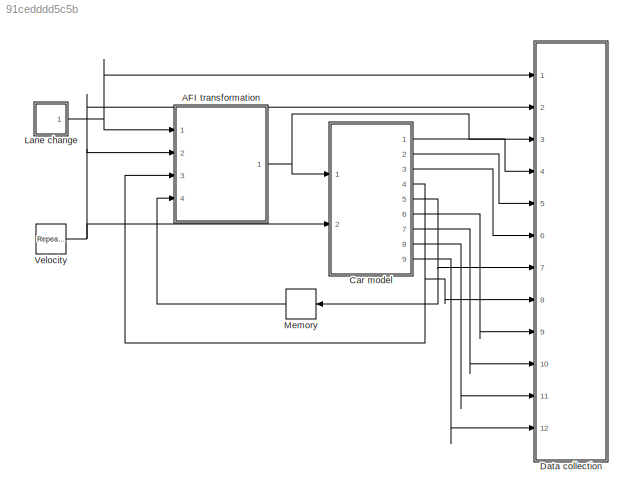
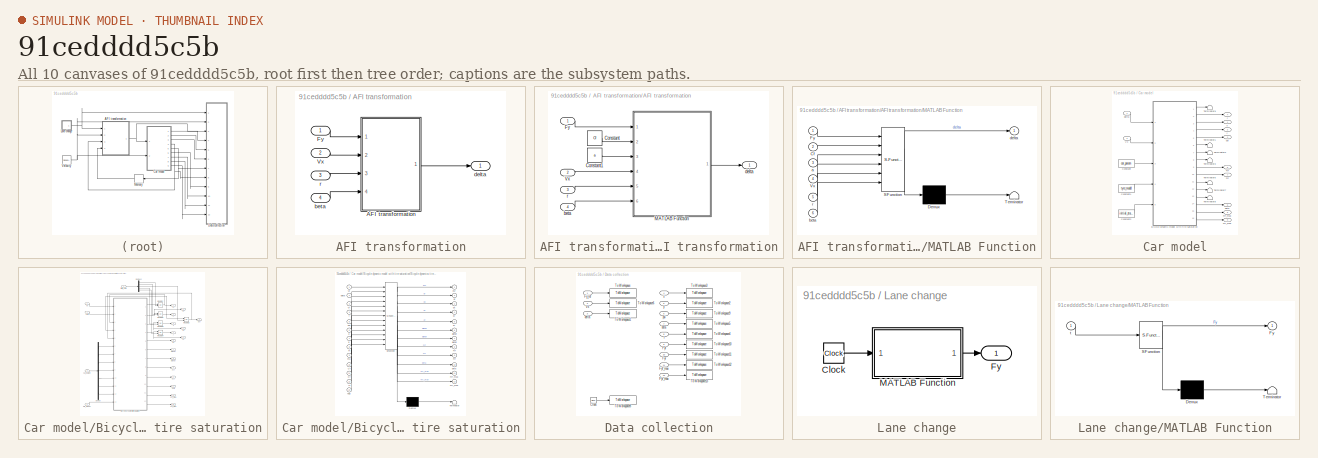
[diagram: thumbnail index - all 10 canvases of the model, root first then tree order]
MODEL slx_91cedddd5c5b
KIND model
CONFIG AbsTol = auto
CONFIG EnableMultiTasking = off
CONFIG FixedStep = auto
CONFIG MaxStep = auto
CONFIG MinStep = 1e-4
CONFIG RelTol = 1e-3
CONFIG SampleTimeConstraint = Unconstrained
CONFIG SolverName = VariableStepAuto
CONFIG StartTime = 0.0
CONFIG StopTime = 84
BLOCK [SubSystem] AFI transformation
  Ports = [4, 1]
  RequestExecContextInheritance = off
BLOCK [SubSystem] AFI transformation/AFI transformation
  Ports = [4, 1]
  RequestExecContextInheritance = off
BLOCK [Constant] AFI transformation/AFI transformation/Constant
  Value = Cf
BLOCK [Constant] AFI transformation/AFI transformation/Constant1
  Value = a
BLOCK [Inport] AFI transformation/AFI transformation/Fy
BLOCK [SubSystem] AFI transformation/AFI transformation/MATLAB Function
  ErrorFcn = Stateflow.Translate.translate
  PermitHierarchicalResolution = ExplicitOnly
  Ports = [6, 1]
  RequestExecContextInheritance = off
  SFBlockType = MATLAB Function
  TreatAsAtomicUnit = on
BLOCK [Demux] AFI transformation/AFI transformation/MATLAB Function/ Demux 
  Outputs = 1
  Ports = [1, 1]
BLOCK [S-Function] AFI transformation/AFI transformation/MATLAB Function/ SFunction 
  EnableBusSupport = on
  FunctionName = sf_sfun
  PortCounts = [6 2]
  Ports = [6, 2]
  SFcnIsStateOwnerBlock = off
  SFunctionDeploymentMode = off
  Tag = Stateflow S-Function 5
BLOCK [Terminator] AFI transformation/AFI transformation/MATLAB Function/ Terminator 
BLOCK [Inport] AFI transformation/AFI transformation/MATLAB Function/Cf
  Port = 2
BLOCK [Inport] AFI transformation/AFI transformation/MATLAB Function/Fy
BLOCK [Inport] AFI transformation/AFI transformation/MATLAB Function/Vx
  Port = 4
BLOCK [Inport] AFI transformation/AFI transformation/MATLAB Function/a
  Port = 3
BLOCK [Inport] AFI transformation/AFI transformation/MATLAB Function/beta
  Port = 6
BLOCK [Outport] AFI transformation/AFI transformation/MATLAB Function/delta
BLOCK [Inport] AFI transformation/AFI transformation/MATLAB Function/r
  Port = 5
BLOCK [Inport] AFI transformation/AFI transformation/Vx
  Port = 2
BLOCK [Inport] AFI transformation/AFI transformation/beta
  Port = 4
BLOCK [Outport] AFI transformation/AFI transformation/delta
BLOCK [Inport] AFI transformation/AFI transformation/r
  Port = 3
BLOCK [Inport] AFI transformation/Fy
BLOCK [Inport] AFI transformation/Vx
  Port = 2
BLOCK [Inport] AFI transformation/beta
  Port = 4
BLOCK [Outport] AFI transformation/delta
BLOCK [Inport] AFI transformation/r
  Port = 3
BLOCK [SubSystem] Car model
  Ports = [2, 9]
  RequestExecContextInheritance = off
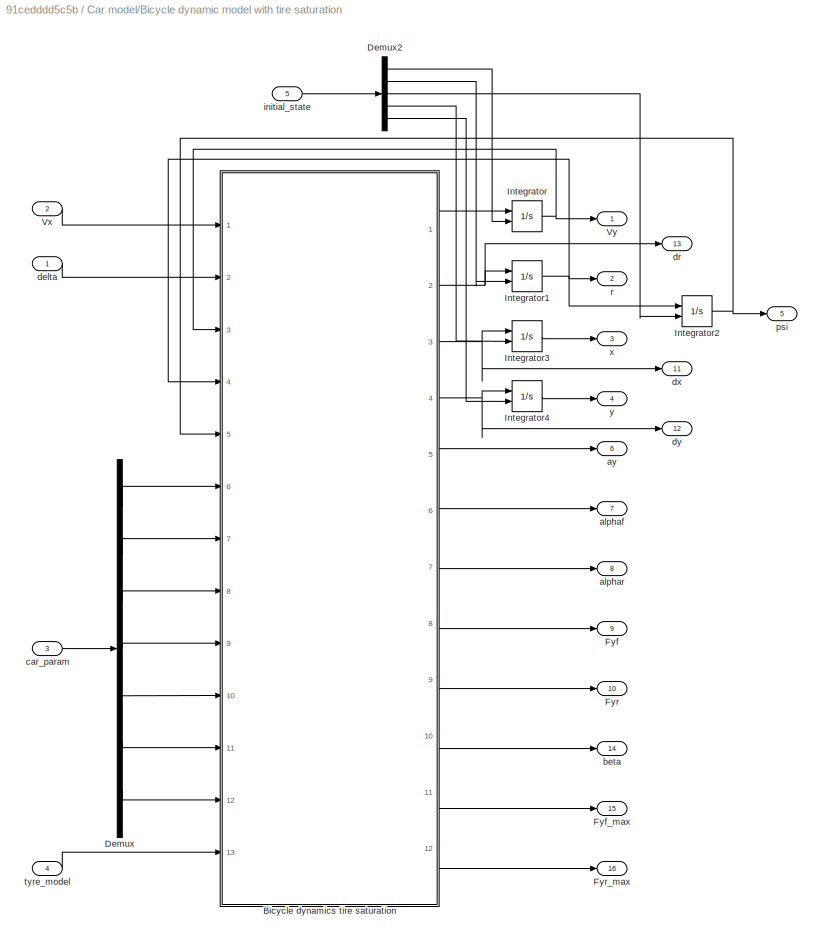
BLOCK [SubSystem] Car model/Bicycle dynamic model with tire saturation
  Ports = [5, 16]
  RequestExecContextInheritance = off
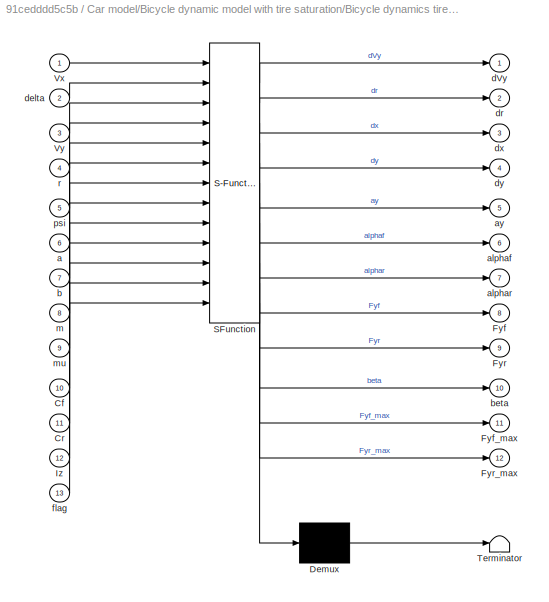
BLOCK [SubSystem] Car model/Bicycle dynamic model with tire saturation/Bicycle dynamics tire saturation
  ErrorFcn = Stateflow.Translate.translate
  PermitHierarchicalResolution = ExplicitOnly
  Ports = [13, 12]
  RequestExecContextInheritance = off
  SFBlockType = MATLAB Function
  TreatAsAtomicUnit = on
BLOCK [Demux] Car model/Bicycle dynamic model with tire saturation/Bicycle dynamics tire saturation/ Demux 
  Outputs = 1
  Ports = [1, 1]
BLOCK [S-Function] Car model/Bicycle dynamic model with tire saturation/Bicycle dynamics tire saturation/ SFunction 
  EnableBusSupport = on
  FunctionName = sf_sfun
  PortCounts = [13 13]
  Ports = [13, 13]
  SFcnIsStateOwnerBlock = off
  SFunctionDeploymentMode = off
  Tag = Stateflow S-Function 4
BLOCK [Terminator] Car model/Bicycle dynamic model with tire saturation/Bicycle dynamics tire saturation/ Terminator 
BLOCK [Inport] Car model/Bicycle dynamic model with tire saturation/Bicycle dynamics tire saturation/Cf
  Port = 10
BLOCK [Inport] Car model/Bicycle dynamic model with tire saturation/Bicycle dynamics tire saturation/Cr
  Port = 11
BLOCK [Outport] Car model/Bicycle dynamic model with tire saturation/Bicycle dynamics tire saturation/Fyf
  Port = 8
BLOCK [Outport] Car model/Bicycle dynamic model with tire saturation/Bicycle dynamics tire saturation/Fyf_max
  Port = 11
BLOCK [Outport] Car model/Bicycle dynamic model with tire saturation/Bicycle dynamics tire saturation/Fyr
  Port = 9
BLOCK [Outport] Car model/Bicycle dynamic model with tire saturation/Bicycle dynamics tire saturation/Fyr_max
  Port = 12
BLOCK [Inport] Car model/Bicycle dynamic model with tire saturation/Bicycle dynamics tire saturation/Iz
  Port = 12
BLOCK [Inport] Car model/Bicycle dynamic model with tire saturation/Bicycle dynamics tire saturation/Vx
BLOCK [Inport] Car model/Bicycle dynamic model with tire saturation/Bicycle dynamics tire saturation/Vy
  Port = 3
BLOCK [Inport] Car model/Bicycle dynamic model with tire saturation/Bicycle dynamics tire saturation/a
  Port = 6
BLOCK [Outport] Car model/Bicycle dynamic model with tire saturation/Bicycle dynamics tire saturation/alphaf
  Port = 6
BLOCK [Outport] Car model/Bicycle dynamic model with tire saturation/Bicycle dynamics tire saturation/alphar
  Port = 7
BLOCK [Outport] Car model/Bicycle dynamic model with tire saturation/Bicycle dynamics tire saturation/ay
  Port = 5
BLOCK [Inport] Car model/Bicycle dynamic model with tire saturation/Bicycle dynamics tire saturation/b
  Port = 7
BLOCK [Outport] Car model/Bicycle dynamic model with tire saturation/Bicycle dynamics tire saturation/beta
  Port = 10
BLOCK [Outport] Car model/Bicycle dynamic model with tire saturation/Bicycle dynamics tire saturation/dVy
BLOCK [Inport] Car model/Bicycle dynamic model with tire saturation/Bicycle dynamics tire saturation/delta
  Port = 2
BLOCK [Outport] Car model/Bicycle dynamic model with tire saturation/Bicycle dynamics tire saturation/dr
  Port = 2
  VectorParamsAs1DForOutWhenUnconnected = off
BLOCK [Outport] Car model/Bicycle dynamic model with tire saturation/Bicycle dynamics tire saturation/dx
  Port = 3
BLOCK [Outport] Car model/Bicycle dynamic model with tire saturation/Bicycle dynamics tire saturation/dy
  Port = 4
BLOCK [Inport] Car model/Bicycle dynamic model with tire saturation/Bicycle dynamics tire saturation/flag
  Port = 13
BLOCK [Inport] Car model/Bicycle dynamic model with tire saturation/Bicycle dynamics tire saturation/m
  Port = 8
BLOCK [Inport] Car model/Bicycle dynamic model with tire saturation/Bicycle dynamics tire saturation/mu
  Port = 9
BLOCK [Inport] Car model/Bicycle dynamic model with tire saturation/Bicycle dynamics tire saturation/psi
  Port = 5
BLOCK [Inport] Car model/Bicycle dynamic model with tire saturation/Bicycle dynamics tire saturation/r
  Port = 4
BLOCK [Demux] Car model/Bicycle dynamic model with tire saturation/Demux
  Outputs = 7
  Ports = [1, 7]
BLOCK [Demux] Car model/Bicycle dynamic model with tire saturation/Demux2
  Outputs = 5
  Ports = [1, 5]
BLOCK [Outport] Car model/Bicycle dynamic model with tire saturation/Fyf
  Port = 9
BLOCK [Outport] Car model/Bicycle dynamic model with tire saturation/Fyf_max
  Port = 15
BLOCK [Outport] Car model/Bicycle dynamic model with tire saturation/Fyr
  Port = 10
BLOCK [Outport] Car model/Bicycle dynamic model with tire saturation/Fyr_max
  Port = 16
BLOCK [Integrator] Car model/Bicycle dynamic model with tire saturation/Integrator
  InitialConditionSource = external
  Ports = [2, 1]
BLOCK [Integrator] Car model/Bicycle dynamic model with tire saturation/Integrator1
  InitialConditionSource = external
  Ports = [2, 1]
BLOCK [Integrator] Car model/Bicycle dynamic model with tire saturation/Integrator2
  InitialConditionSource = external
  Ports = [2, 1]
BLOCK [Integrator] Car model/Bicycle dynamic model with tire saturation/Integrator3
  InitialConditionSource = external
  Ports = [2, 1]
BLOCK [Integrator] Car model/Bicycle dynamic model with tire saturation/Integrator4
  InitialConditionSource = external
  Ports = [2, 1]
BLOCK [Inport] Car model/Bicycle dynamic model with tire saturation/Vx
  Port = 2
BLOCK [Outport] Car model/Bicycle dynamic model with tire saturation/Vy
BLOCK [Outport] Car model/Bicycle dynamic model with tire saturation/alphaf
  Port = 7
BLOCK [Outport] Car model/Bicycle dynamic model with tire saturation/alphar
  Port = 8
BLOCK [Outport] Car model/Bicycle dynamic model with tire saturation/ay
  Port = 6
BLOCK [Outport] Car model/Bicycle dynamic model with tire saturation/beta
  Port = 14
BLOCK [Inport] Car model/Bicycle dynamic model with tire saturation/car_param
  Port = 3
BLOCK [Inport] Car model/Bicycle dynamic model with tire saturation/delta
BLOCK [Outport] Car model/Bicycle dynamic model with tire saturation/dr
  Port = 13
BLOCK [Outport] Car model/Bicycle dynamic model with tire saturation/dx
  Port = 11
BLOCK [Outport] Car model/Bicycle dynamic model with tire saturation/dy
  Port = 12
BLOCK [Inport] Car model/Bicycle dynamic model with tire saturation/initial_state 
  Port = 5
BLOCK [Outport] Car model/Bicycle dynamic model with tire saturation/psi
  Port = 5
BLOCK [Outport] Car model/Bicycle dynamic model with tire saturation/r
  Port = 2
BLOCK [Inport] Car model/Bicycle dynamic model with tire saturation/tyre_model
  Port = 4
BLOCK [Outport] Car model/Bicycle dynamic model with tire saturation/x
  Port = 3
BLOCK [Outport] Car model/Bicycle dynamic model with tire saturation/y
  Port = 4
BLOCK [Constant] Car model/Constant
  Value = car_param
BLOCK [Constant] Car model/Constant1
  Value = tyre_model
BLOCK [Constant] Car model/Constant2
  Value = initial_state
BLOCK [Outport] Car model/Fyf
  Port = 6
BLOCK [Outport] Car model/Fyf_max
  Port = 8
BLOCK [Outport] Car model/Fyr
  Port = 7
BLOCK [Outport] Car model/Fyr_max
  Port = 9
BLOCK [Terminator] Car model/Terminator1
BLOCK [Terminator] Car model/Terminator2
BLOCK [Terminator] Car model/Terminator3
BLOCK [Terminator] Car model/Terminator6
BLOCK [Terminator] Car model/Terminator7
BLOCK [Terminator] Car model/Terminator8
BLOCK [Terminator] Car model/Terminator9
BLOCK [Inport] Car model/Vx
  Port = 2
BLOCK [Outport] Car model/beta
  Port = 5
BLOCK [Inport] Car model/delta
BLOCK [Outport] Car model/psi
  Port = 3
BLOCK [Outport] Car model/r
  Port = 4
BLOCK [Outport] Car model/x
BLOCK [Outport] Car model/y
  Port = 2
BLOCK [SubSystem] Data collection
  Ports = [12]
  RequestExecContextInheritance = off
BLOCK [Clock] Data collection/Clock
BLOCK [Inport] Data collection/Fy_ref
BLOCK [Inport] Data collection/Fyf
  Port = 9
BLOCK [Inport] Data collection/Fyf_max
  Port = 11
BLOCK [Inport] Data collection/Fyr
  Port = 10
BLOCK [Inport] Data collection/Fyr_max
  Port = 12
BLOCK [ToWorkspace] Data collection/To Workspace
  FixptAsFi = on
  MaxDataPoints = inf
  Ports = [1]
  SampleTime = 0.01
  VariableName = Fy_ref
BLOCK [ToWorkspace] Data collection/To Workspace1
  FixptAsFi = on
  MaxDataPoints = inf
  Ports = [1]
  SampleTime = 0.01
  VariableName = delta
BLOCK [ToWorkspace] Data collection/To Workspace10
  FixptAsFi = on
  MaxDataPoints = inf
  Ports = [1]
  SampleTime = 0.01
  VariableName = Fyf
BLOCK [ToWorkspace] Data collection/To Workspace11
  FixptAsFi = on
  MaxDataPoints = inf
  Ports = [1]
  SampleTime = 0.01
  VariableName = Fyr
BLOCK [ToWorkspace] Data collection/To Workspace12
  FixptAsFi = on
  MaxDataPoints = inf
  Ports = [1]
  SampleTime = 0.01
  VariableName = Fyf_max
BLOCK [ToWorkspace] Data collection/To Workspace13
  FixptAsFi = on
  MaxDataPoints = inf
  Ports = [1]
  SampleTime = 0.01
  VariableName = Fyr_max
BLOCK [ToWorkspace] Data collection/To Workspace2
  FixptAsFi = on
  MaxDataPoints = inf
  Ports = [1]
  SampleTime = 0.01
  VariableName = y
BLOCK [ToWorkspace] Data collection/To Workspace3
  FixptAsFi = on
  MaxDataPoints = inf
  Ports = [1]
  SampleTime = 0.01
  VariableName = x
BLOCK [ToWorkspace] Data collection/To Workspace4
  FixptAsFi = on
  MaxDataPoints = inf
  Ports = [1]
  SampleTime = 0.01
  VariableName = r
BLOCK [ToWorkspace] Data collection/To Workspace5
  FixptAsFi = on
  MaxDataPoints = inf
  Ports = [1]
  SampleTime = 0.01
  VariableName = beta
BLOCK [ToWorkspace] Data collection/To Workspace6
  FixptAsFi = on
  MaxDataPoints = inf
  Ports = [1]
  SampleTime = 0.01
  VariableName = Vx
BLOCK [ToWorkspace] Data collection/To Workspace8
  FixptAsFi = on
  MaxDataPoints = inf
  Ports = [1]
  SampleTime = 0.01
  VariableName = t
BLOCK [ToWorkspace] Data collection/To Workspace9
  FixptAsFi = on
  MaxDataPoints = inf
  Ports = [1]
  SampleTime = 0.01
  VariableName = psi
BLOCK [Inport] Data collection/Vx
  Port = 2
BLOCK [Inport] Data collection/beta
  Port = 7
BLOCK [Inport] Data collection/delta
  Port = 3
BLOCK [Inport] Data collection/psi
  Port = 6
BLOCK [Inport] Data collection/r
  Port = 8
BLOCK [Inport] Data collection/x
  Port = 4
BLOCK [Inport] Data collection/y
  Port = 5
BLOCK [SubSystem] Lane change
  Ports = [0, 1]
  RequestExecContextInheritance = off
BLOCK [Clock] Lane change/Clock
BLOCK [Outport] Lane change/Fy
BLOCK [SubSystem] Lane change/MATLAB Function
  ErrorFcn = Stateflow.Translate.translate
  PermitHierarchicalResolution = ExplicitOnly
  Ports = [1, 1]
  RequestExecContextInheritance = off
  SFBlockType = MATLAB Function
  TreatAsAtomicUnit = on
BLOCK [Demux] Lane change/MATLAB Function/ Demux 
  Outputs = 1
  Ports = [1, 1]
BLOCK [S-Function] Lane change/MATLAB Function/ SFunction 
  EnableBusSupport = on
  FunctionName = sf_sfun
  PortCounts = [1 2]
  Ports = [1, 2]
  SFcnIsStateOwnerBlock = off
  SFunctionDeploymentMode = off
  Tag = Stateflow S-Function 2
BLOCK [Terminator] Lane change/MATLAB Function/ Terminator 
BLOCK [Outport] Lane change/MATLAB Function/Fy
BLOCK [Inport] Lane change/MATLAB Function/t
BLOCK [Memory] Memory
BLOCK [Reference] Velocity  REF=simulink/Sources/Repeating
Sequence
Stair
  Ports = [0, 1]
  SourceBlock = simulink/Sources/Repeating\nSequence\nStair
  SourceProductBaseCode = SL
  SourceType = Repeating Sequence Stair
LINE AFI transformation/AFI transformation/Constant1:1 -> AFI transformation/AFI transformation/MATLAB Function:3
LINE AFI transformation/AFI transformation/Constant:1 -> AFI transformation/AFI transformation/MATLAB Function:2
LINE AFI transformation/AFI transformation/Fy:1 -> AFI transformation/AFI transformation/MATLAB Function:1
LINE AFI transformation/AFI transformation/MATLAB Function:1 -> AFI transformation/AFI transformation/delta:1
LINE AFI transformation/AFI transformation/Vx:1 -> AFI transformation/AFI transformation/MATLAB Function:4
LINE AFI transformation/AFI transformation/beta:1 -> AFI transformation/AFI transformation/MATLAB Function:6
LINE AFI transformation/AFI transformation/r:1 -> AFI transformation/AFI transformation/MATLAB Function:5
LINE AFI transformation/AFI transformation:1 -> AFI transformation/delta:1
LINE AFI transformation/Fy:1 -> AFI transformation/AFI transformation:1
LINE AFI transformation/Vx:1 -> AFI transformation/AFI transformation:2
LINE AFI transformation/beta:1 -> AFI transformation/AFI transformation:4
LINE AFI transformation/r:1 -> AFI transformation/AFI transformation:3
NET AFI transformation:1 -> Car model:1, Data collection:3
LINE Car model/Bicycle dynamic model with tire saturation/Bicycle dynamics tire saturation:1 -> Car model/Bicycle dynamic model with tire saturation/Integrator:1
LINE Car model/Bicycle dynamic model with tire saturation/Bicycle dynamics tire saturation:10 -> Car model/Bicycle dynamic model with tire saturation/beta:1
LINE Car model/Bicycle dynamic model with tire saturation/Bicycle dynamics tire saturation:11 -> Car model/Bicycle dynamic model with tire saturation/Fyf_max:1
LINE Car model/Bicycle dynamic model with tire saturation/Bicycle dynamics tire saturation:12 -> Car model/Bicycle dynamic model with tire saturation/Fyr_max:1
NET Car model/Bicycle dynamic model with tire saturation/Bicycle dynamics tire saturation:2 -> Car model/Bicycle dynamic model with tire saturation/Integrator1:1, Car model/Bicycle dynamic model with tire saturation/dr:1
NET Car model/Bicycle dynamic model with tire saturation/Bicycle dynamics tire saturation:3 -> Car model/Bicycle dynamic model with tire saturation/Integrator3:1, Car model/Bicycle dynamic model with tire saturation/dx:1
NET Car model/Bicycle dynamic model with tire saturation/Bicycle dynamics tire saturation:4 -> Car model/Bicycle dynamic model with tire saturation/Integrator4:1, Car model/Bicycle dynamic model with tire saturation/dy:1
LINE Car model/Bicycle dynamic model with tire saturation/Bicycle dynamics tire saturation:5 -> Car model/Bicycle dynamic model with tire saturation/ay:1
LINE Car model/Bicycle dynamic model with tire saturation/Bicycle dynamics tire saturation:6 -> Car model/Bicycle dynamic model with tire saturation/alphaf:1
LINE Car model/Bicycle dynamic model with tire saturation/Bicycle dynamics tire saturation:7 -> Car model/Bicycle dynamic model with tire saturation/alphar:1
LINE Car model/Bicycle dynamic model with tire saturation/Bicycle dynamics tire saturation:8 -> Car model/Bicycle dynamic model with tire saturation/Fyf:1
LINE Car model/Bicycle dynamic model with tire saturation/Bicycle dynamics tire saturation:9 -> Car model/Bicycle dynamic model with tire saturation/Fyr:1
LINE Car model/Bicycle dynamic model with tire saturation/Demux2:1 -> Car model/Bicycle dynamic model with tire saturation/Integrator:2
LINE Car model/Bicycle dynamic model with tire saturation/Demux2:2 -> Car model/Bicycle dynamic model with tire saturation/Integrator1:2
LINE Car model/Bicycle dynamic model with tire saturation/Demux2:3 -> Car model/Bicycle dynamic model with tire saturation/Integrator2:2
LINE Car model/Bicycle dynamic model with tire saturation/Demux2:4 -> Car model/Bicycle dynamic model with tire saturation/Integrator3:2
LINE Car model/Bicycle dynamic model with tire saturation/Demux2:5 -> Car model/Bicycle dynamic model with tire saturation/Integrator4:2
LINE Car model/Bicycle dynamic model with tire saturation/Demux:1 -> Car model/Bicycle dynamic model with tire saturation/Bicycle dynamics tire saturation:6
LINE Car model/Bicycle dynamic model with tire saturation/Demux:2 -> Car model/Bicycle dynamic model with tire saturation/Bicycle dynamics tire saturation:7
LINE Car model/Bicycle dynamic model with tire saturation/Demux:3 -> Car model/Bicycle dynamic model with tire saturation/Bicycle dynamics tire saturation:8
LINE Car model/Bicycle dynamic model with tire saturation/Demux:4 -> Car model/Bicycle dynamic model with tire saturation/Bicycle dynamics tire saturation:9
LINE Car model/Bicycle dynamic model with tire saturation/Demux:5 -> Car model/Bicycle dynamic model with tire saturation/Bicycle dynamics tire saturation:10
LINE Car model/Bicycle dynamic model with tire saturation/Demux:6 -> Car model/Bicycle dynamic model with tire saturation/Bicycle dynamics tire saturation:11
LINE Car model/Bicycle dynamic model with tire saturation/Demux:7 -> Car model/Bicycle dynamic model with tire saturation/Bicycle dynamics tire saturation:12
NET Car model/Bicycle dynamic model with tire saturation/Integrator1:1 -> Car model/Bicycle dynamic model with tire saturation/Bicycle dynamics tire saturation:4, Car model/Bicycle dynamic model with tire saturation/Integrator2:1, Car model/Bicycle dynamic model with tire saturation/r:1
NET Car model/Bicycle dynamic model with tire saturation/Integrator2:1 -> Car model/Bicycle dynamic model with tire saturation/Bicycle dynamics tire saturation:5, Car model/Bicycle dynamic model with tire saturation/psi:1
LINE Car model/Bicycle dynamic model with tire saturation/Integrator3:1 -> Car model/Bicycle dynamic model with tire saturation/x:1
LINE Car model/Bicycle dynamic model with tire saturation/Integrator4:1 -> Car model/Bicycle dynamic model with tire saturation/y:1
NET Car model/Bicycle dynamic model with tire saturation/Integrator:1 -> Car model/Bicycle dynamic model with tire saturation/Bicycle dynamics tire saturation:3, Car model/Bicycle dynamic model with tire saturation/Vy:1
LINE Car model/Bicycle dynamic model with tire saturation/Vx:1 -> Car model/Bicycle dynamic model with tire saturation/Bicycle dynamics tire saturation:1
LINE Car model/Bicycle dynamic model with tire saturation/car_param:1 -> Car model/Bicycle dynamic model with tire saturation/Demux:1
LINE Car model/Bicycle dynamic model with tire saturation/delta:1 -> Car model/Bicycle dynamic model with tire saturation/Bicycle dynamics tire saturation:2
LINE Car model/Bicycle dynamic model with tire saturation/initial_state :1 -> Car model/Bicycle dynamic model with tire saturation/Demux2:1
LINE Car model/Bicycle dynamic model with tire saturation/tyre_model:1 -> Car model/Bicycle dynamic model with tire saturation/Bicycle dynamics tire saturation:13
LINE Car model/Bicycle dynamic model with tire saturation:1 -> Car model/Terminator9:1
LINE Car model/Bicycle dynamic model with tire saturation:10 -> Car model/Fyr:1
LINE Car model/Bicycle dynamic model with tire saturation:11 -> Car model/Terminator6:1
LINE Car model/Bicycle dynamic model with tire saturation:12 -> Car model/Terminator7:1
LINE Car model/Bicycle dynamic model with tire saturation:13 -> Car model/Terminator8:1
LINE Car model/Bicycle dynamic model with tire saturation:14 -> Car model/beta:1
LINE Car model/Bicycle dynamic model with tire saturation:15 -> Car model/Fyf_max:1
LINE Car model/Bicycle dynamic model with tire saturation:16 -> Car model/Fyr_max:1
LINE Car model/Bicycle dynamic model with tire saturation:2 -> Car model/r:1
LINE Car model/Bicycle dynamic model with tire saturation:3 -> Car model/x:1
LINE Car model/Bicycle dynamic model with tire saturation:4 -> Car model/y:1
LINE Car model/Bicycle dynamic model with tire saturation:5 -> Car model/psi:1
LINE Car model/Bicycle dynamic model with tire saturation:6 -> Car model/Terminator1:1
LINE Car model/Bicycle dynamic model with tire saturation:7 -> Car model/Terminator2:1
LINE Car model/Bicycle dynamic model with tire saturation:8 -> Car model/Terminator3:1
LINE Car model/Bicycle dynamic model with tire saturation:9 -> Car model/Fyf:1
LINE Car model/Constant1:1 -> Car model/Bicycle dynamic model with tire saturation:4
LINE Car model/Constant2:1 -> Car model/Bicycle dynamic model with tire saturation:5
LINE Car model/Constant:1 -> Car model/Bicycle dynamic model with tire saturation:3
LINE Car model/Vx:1 -> Car model/Bicycle dynamic model with tire saturation:2
LINE Car model/delta:1 -> Car model/Bicycle dynamic model with tire saturation:1
LINE Car model:1 -> Data collection:4
LINE Car model:2 -> Data collection:5
LINE Car model:3 -> Data collection:6
NET Car model:4 -> AFI transformation:3, Data collection:8
NET Car model:5 -> Data collection:7, Memory:1
LINE Car model:6 -> Data collection:9
LINE Car model:7 -> Data collection:10
LINE Car model:8 -> Data collection:11
LINE Car model:9 -> Data collection:12
LINE Data collection/Clock:1 -> Data collection/To Workspace8:1
LINE Data collection/Fy_ref:1 -> Data collection/To Workspace:1
LINE Data collection/Fyf:1 -> Data collection/To Workspace10:1
LINE Data collection/Fyf_max:1 -> Data collection/To Workspace12:1
LINE Data collection/Fyr:1 -> Data collection/To Workspace11:1
LINE Data collection/Fyr_max:1 -> Data collection/To Workspace13:1
LINE Data collection/Vx:1 -> Data collection/To Workspace6:1
LINE Data collection/beta:1 -> Data collection/To Workspace5:1
LINE Data collection/delta:1 -> Data collection/To Workspace1:1
LINE Data collection/psi:1 -> Data collection/To Workspace9:1
LINE Data collection/r:1 -> Data collection/To Workspace4:1
LINE Data collection/x:1 -> Data collection/To Workspace3:1
LINE Data collection/y:1 -> Data collection/To Workspace2:1
LINE Lane change/Clock:1 -> Lane change/MATLAB Function:1
LINE Lane change/MATLAB Function:1 -> Lane change/Fy:1
NET Lane change:1 -> AFI transformation:1, Data collection:1
LINE Memory:1 -> AFI transformation:4
NET Velocity:1 -> AFI transformation:2, Car model:2, Data collection:2
note: NET lines group one-source signal fan-out (src -> all destinations, sorted); 1:1 wires keep LINE
CHART Lane change/MATLAB Function states=1 transitions=1
  STATE_LABEL 'eML_blk_kernel()'
  STATE_LABEL 'SCRIPT:\nfunction Fy = lane_change(t)\n\nif (mod(t,14)<=2)\n    Fy = 0;\n    return;\nelseif (mod(t,14)<=4)\n    Fy = -2;\n    return;\nelseif (mod(t,14)<=6)\n    Fy = 2;\n    return;\nelseif (mod(t,14)<=8)\n    Fy = 0;\n    return;\nelseif (mod(t,14)<=10)\n    Fy = 2;\n    return;\nelseif (mod(t,14)<=12)\n    Fy = -2;\n    return;\nelse\n    Fy = 0;\nend\n'
CHART Car model/Bicycle dynamic
model with tire saturation/Bicycle dynamics tire saturation states=1 transitions=1
  STATE_LABEL 'eML_blk_kernel()'
  STATE_LABEL 'SCRIPT:\nfunction [dVy,dr,dx,dy,ay,alphaf,alphar,Fyf,Fyr,beta,Fyf_max,Fyr_max]  = bicycle_dynamics(Vx, delta, Vy, r, psi, a, b, m, mu, Cf, Cr, Iz, flag)\n\nFzf = m*9.81*b/(a+b);\nFzr = m*9.81*a/(a+b);\n\nif (abs(Vx)<=0.01)\n    alphaf = 0;\n    alphar = 0;\nelse\n    alphaf = atan((Vy+a*r)/Vx)-delta;\n    alphar = atan((Vy-b*r)/Vx);\nend\n\nzf = tan(alphaf);\nzr = tan(alphar);\n\nzf_sl = 3*mu*Fzf/Cf;\nzr_sl = 3*mu*...<+1031ch>'
CHART AFI transformation/AFI transformation/MATLAB Function states=1 transitions=1
  STATE_LABEL 'eML_blk_kernel()'
  STATE_LABEL 'SCRIPT:\nfunction delta = AFI_transformation(Fy,Cf,a,Vx,r,beta)\n\ndelta = 1/Cf*Fy+[1, a/Vx]*[beta; r];'
CHART  states=0 transitions=0
CHART  states=0 transitions=0
CHART  states=0 transitions=0
